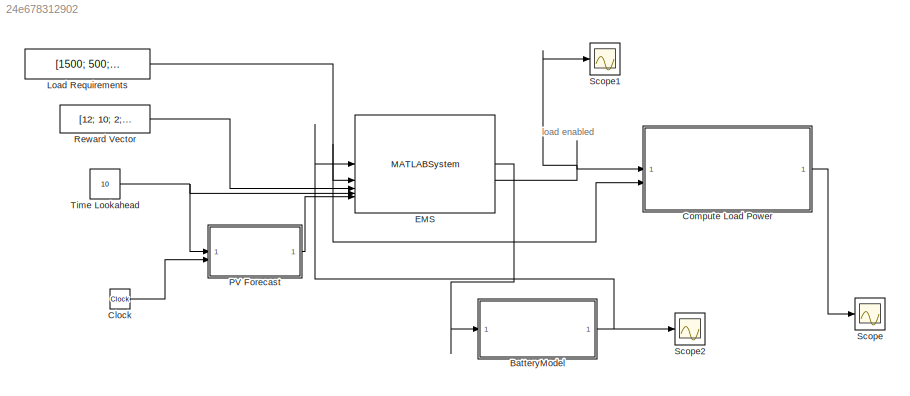
MODEL slx_24e678312902
KIND model
CONFIG AbsTol = auto
CONFIG EnableMultiTasking = off
CONFIG FixedStep = auto
CONFIG MaxStep = auto
CONFIG MinStep = auto
CONFIG RelTol = 1e-3
CONFIG SampleTimeConstraint = Unconstrained
CONFIG SolverName = FixedStepAuto
CONFIG StartTime = 60
CONFIG StopTime = 36000
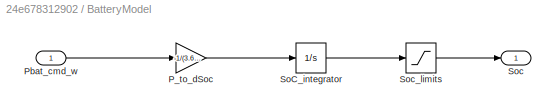
BLOCK [SubSystem] BatteryModel
BLOCK [Gain] BatteryModel/P_to_dSoc
  Gain = -1/(3.6e6)
BLOCK [Inport] BatteryModel/Pbat_cmd_w
BLOCK [Integrator] BatteryModel/SoC_integrator
  InitialCondition = 0.8
BLOCK [Outport] BatteryModel/Soc
BLOCK [Saturate] BatteryModel/Soc_limits
  LowerLimit = 0.2
  UpperLimit = 0.95
BLOCK [Clock] Clock
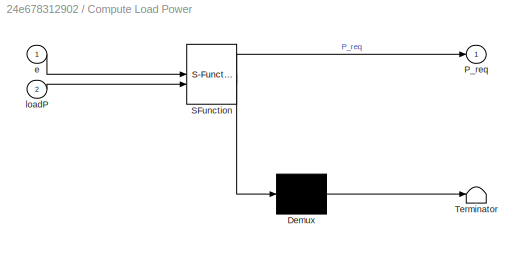
BLOCK [SubSystem] Compute Load Power
  ErrorFcn = Stateflow.Translate.translate
  PermitHierarchicalResolution = ExplicitOnly
  SFBlockType = MATLAB Function
  TreatAsAtomicUnit = on
BLOCK [Demux] Compute Load Power/ Demux 
  Outputs = 1
BLOCK [S-Function] Compute Load Power/ SFunction 
  EnableBusSupport = off
  FunctionName = sf_sfun
  PortCounts = [2 2]
  SFcnIsStateOwnerBlock = off
  SFunctionDeploymentMode = off
  Tag = Stateflow S-Function 1
BLOCK [Terminator] Compute Load Power/ Terminator 
BLOCK [Outport] Compute Load Power/P_req
  VectorParamsAs1DForOutWhenUnconnected = off
BLOCK [Inport] Compute Load Power/e
BLOCK [Inport] Compute Load Power/loadP
  Port = 2
BLOCK [MATLABSystem] EMS
  MaskType = EMSController
  SimulateUsing = Code generation
  System = EMSController
BLOCK [Constant] Load Requirements
  Value = [1500; 500; 200; 200]
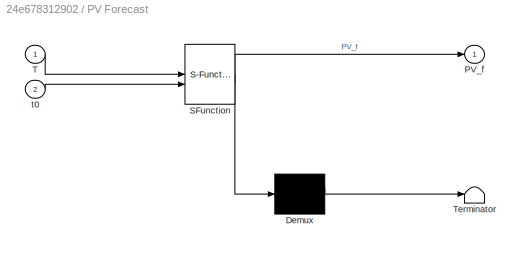
BLOCK [SubSystem] PV Forecast
  ErrorFcn = Stateflow.Translate.translate
  PermitHierarchicalResolution = ExplicitOnly
  SFBlockType = MATLAB Function
  TreatAsAtomicUnit = on
BLOCK [Demux] PV Forecast/ Demux 
  Outputs = 1
BLOCK [S-Function] PV Forecast/ SFunction 
  EnableBusSupport = off
  FunctionName = sf_sfun
  PortCounts = [2 2]
  SFcnIsStateOwnerBlock = off
  SFunctionDeploymentMode = off
  Tag = Stateflow S-Function 2
BLOCK [Terminator] PV Forecast/ Terminator 
BLOCK [Outport] PV Forecast/PV_f
  VectorParamsAs1DForOutWhenUnconnected = off
BLOCK [Inport] PV Forecast/T
BLOCK [Inport] PV Forecast/t0
  Port = 2
BLOCK [Constant] Reward Vector
  Value = [12; 10; 2; 1]
BLOCK [Scope] Scope
  Floating = off
  GraphicalSettings = {"GraphicalSettings":{"LegacySettings":true,"Style":{"Style":{"PlotType":"Auto"}}}}
  NumInputPorts = 1
  WasSavedAsWebScope = on
BLOCK [Scope] Scope1
  DataLoggingVariableName = ScopeData1
  Floating = off
  GraphicalSettings = {"GraphicalSettings":{"LegacySettings":true,"Style":{"Style":{"PlotType":"Auto"}}}}
  NumInputPorts = 1
  WasSavedAsWebScope = on
BLOCK [Scope] Scope2
  DataLoggingVariableName = ScopeData2
  Floating = off
  GraphicalSettings = {"GraphicalSettings":{"LegacySettings":true,"Style":{"Style":{"PlotType":"Auto"}}}}
  NumInputPorts = 1
  ScopeFrameLocation = window
  WasSavedAsWebScope = on
  WindowPosition = [488.000000,270.000000,560.000000,420.000000,]
BLOCK [Constant] Time Lookahead
  Value = 10
ANNOTATION (root): load enabled
LINE BatteryModel/P_to_dSoc:1 -> BatteryModel/SoC_integrator:1
LINE BatteryModel/Pbat_cmd_w:1 -> BatteryModel/P_to_dSoc:1
LINE BatteryModel/SoC_integrator:1 -> BatteryModel/Soc_limits:1
LINE BatteryModel/Soc_limits:1 -> BatteryModel/Soc:1
NET BatteryModel:1 -> EMS:1, Scope2:1
LINE Clock:1 -> PV Forecast:2
LINE Compute Load Power:1 -> Scope:1
LINE EMS:1 -> BatteryModel:1
NET EMS:2 -> Compute Load Power:1, Scope1:1
NET Load Requirements:1 -> Compute Load Power:2, EMS:2
LINE PV Forecast:1 -> EMS:5
LINE Reward Vector:1 -> EMS:3
NET Time Lookahead:1 -> EMS:4, PV Forecast:1
note: NET lines group one-source signal fan-out (src -> all destinations, sorted); 1:1 wires keep LINE
CHART PV Forecast states=1 transitions=1
  STATE_LABEL 'eML_blk_kernel()'
  STATE_LABEL 'SCRIPT:\nfunction PV_f = buildForecast(T, t0)\n%#codegen\n\n% timestep (seconds) – match your fixed-step size\ndt = 60; \n\n% PV model parameters\nPmax = 2000; \nday_length = 86400; \n\nPV_f = zeros(T,1);\n\nfor k = 1:T\n    t_future = t0 + k*dt;\n    PV_f(k) = max(Pmax * sin(pi * t_future / day_length), 0);\nend\n'
CHART Compute Load Power states=1 transitions=1
  STATE_LABEL 'eML_blk_kernel()'
  STATE_LABEL 'SCRIPT:\nfunction P_req = computeLoadPower(e, loadP)\n% e      : vector of enable signals (0/1)\n% loadP  : vector of load power ratings (W)\n% Output : total required load power (W)\n\n    % Ensure column vectors\n    e = e(:);\n    loadP = loadP(:);\n\n    % Total load power\n    P_req = sum(e .* loadP);\nend'
CHART  states=0 transitions=0
CHART  states=0 transitions=0
